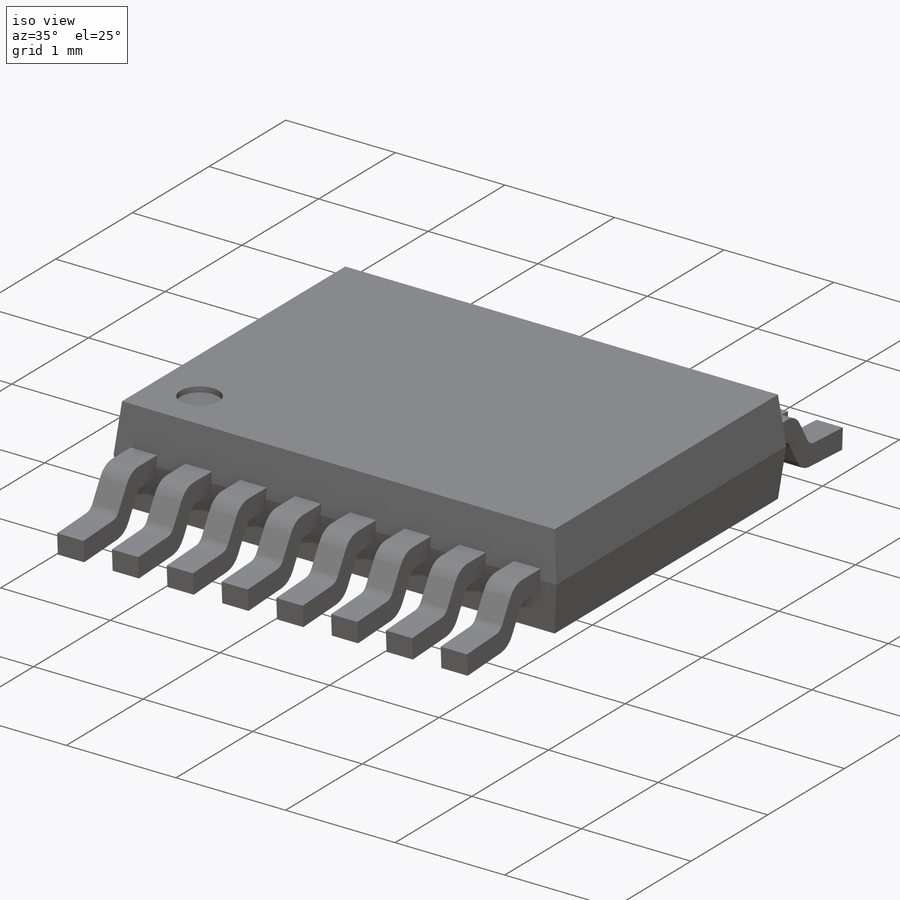
[diagram: iso view]
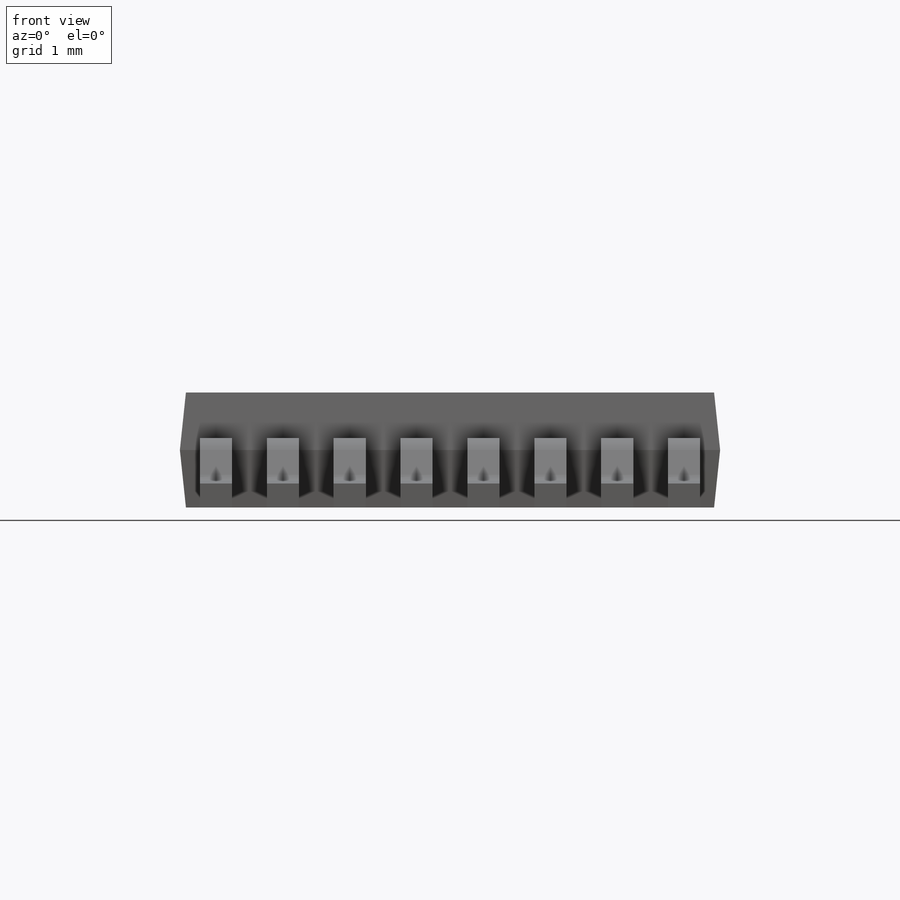
[diagram: front view]
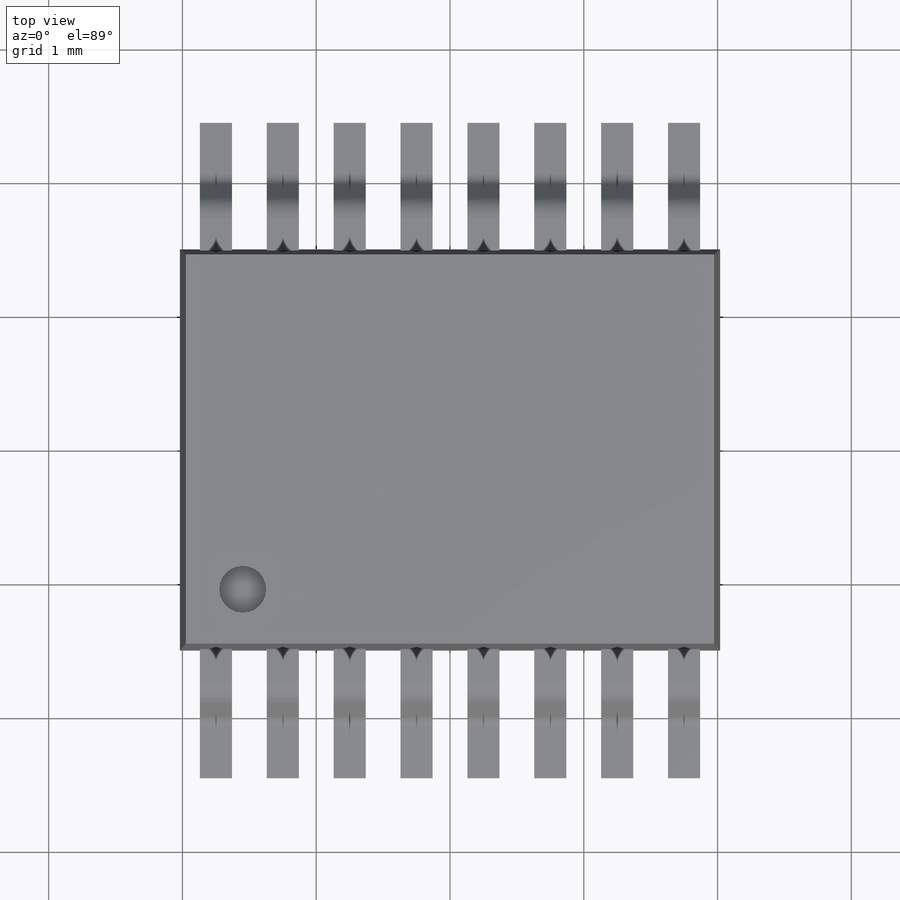
[diagram: top view]
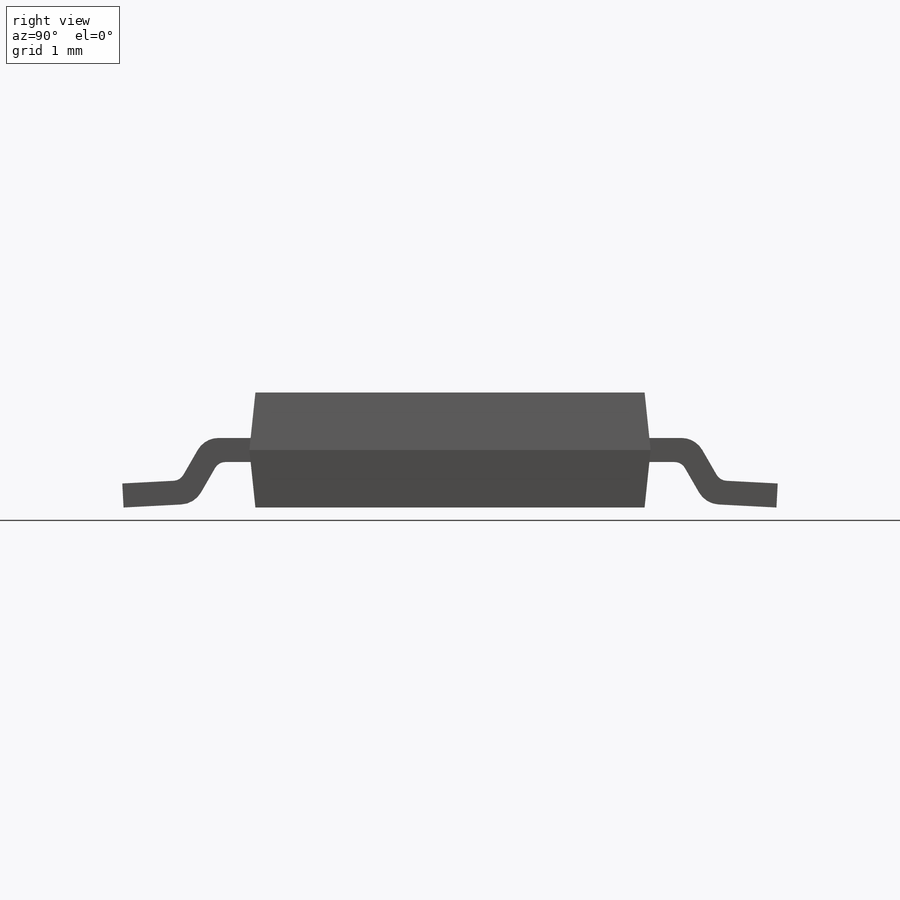
[diagram: right view]
SOLIDWORKS PART (.sldprt)
format: sldprt  version: not decoded by parser v0  size: 389,120 bytes
history: native  units: mm
features: plane x4, sketch x3, extrude x2, material x1, pattern_linear x1, cut_extrude x1 (+13 scaffold rows collapsed)
feature tree (25):
  scaffold x13  (default folders/planes/origin — collapsed)
  material  "Material <not specified>"
  plane  "Спереди"
  plane  "Сверху"
  plane  "Справа"
  sketch  "Эскиз2"  dims[D1=4.039mm D2=3.0mm]
  extrude  "Бобышка-Вытянуть3"  Depth=0.43mm
  plane  "Плоскость1"  Offset=0.25mm
  sketch  "Эскиз17"  dims[c1.D8=0.18mm c1.D9=0.09mm c1.D1=~0.295227mm c2.D1=3.0deg c2.D2=0.18mm c2.D3=0.18mm c2.D4=~0.086831mm c2.D5=4.9mm c2.D6=0.53mm c3.D4=0.18mm c3.D7=~0.242933mm c4.D7=30.0deg c4.D5=4.9mm]
  extrude  "Бобышка-Вытянуть4"  Depth=0.12mm
  pattern_linear  "Линейный массив1"  Count1=4 Count2=5 Spacing1=0.5mm Spacing2=0.5mm
  sketch  "Эскиз3"  dims[D1=0.35mm D2=1.55mm D3=1.05mm]
  cut_extrude  "Вырез-Вытянуть1"  Depth=0.05mm
decode coverage: 7 of 7 modeling features carry decoded parameters
note: ~ marks probable driven/reference dimensions
note: suppression state not decoded; provenance and decode notes live in map.json
